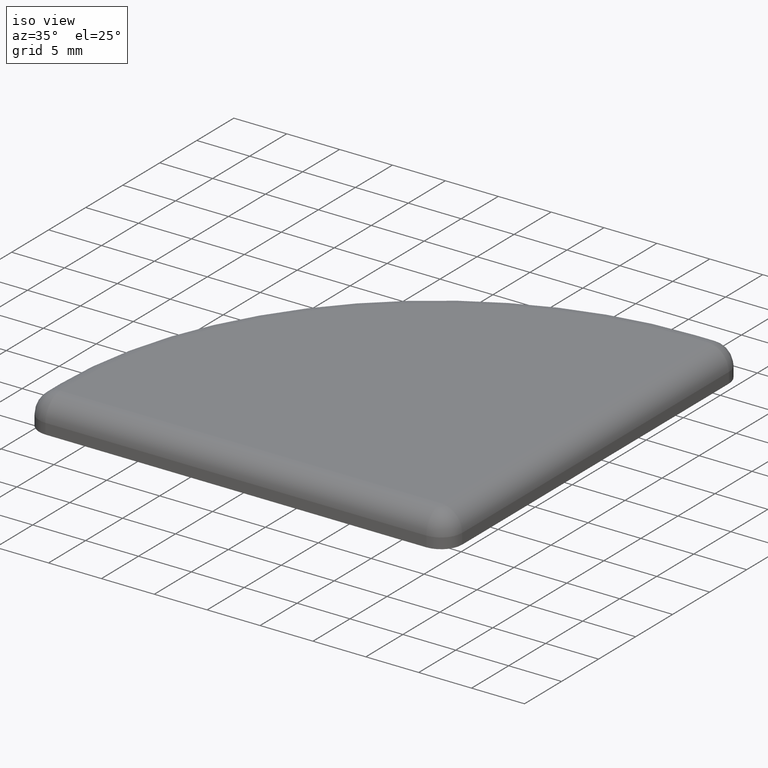
[diagram: clean part render]
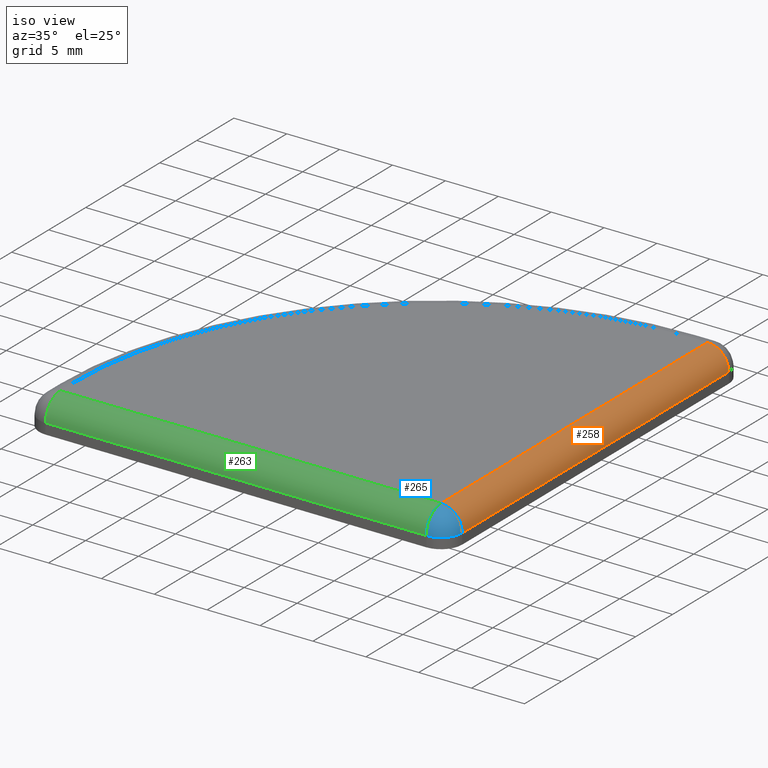
[diagram: same view with three faces highlighted in distinct colors, each labeled with its STEP entity id]
A machine part, iso view with three faces highlighted in distinct colors.
Their STEP definitions:

[orange] entity #258 — the highlighted cylindrical surface (edge-blend (fillet) strip) has radius 2 mm, axis along (-0, 1, 0).
#25=FACE_OUTER_BOUND('',#43,.T.);
#43=EDGE_LOOP('',(#176,#177,#178,#179));
#61=LINE('',#432,#81);
#62=LINE('',#435,#82);
#81=VECTOR('',#340,10.);
#82=VECTOR('',#343,10.);
#101=CIRCLE('',#300,2.);
#102=CIRCLE('',#301,2.);
#118=VERTEX_POINT('',#428);
#119=VERTEX_POINT('',#429);
#120=VERTEX_POINT('',#431);
#121=VERTEX_POINT('',#433);
#139=EDGE_CURVE('',#118,#119,#101,.T.);
#140=EDGE_CURVE('',#119,#120,#61,.T.);
#141=EDGE_CURVE('',#120,#121,#102,.T.);
#142=EDGE_CURVE('',#121,#118,#62,.T.);
#176=ORIENTED_EDGE('',*,*,#139,.T.);
#177=ORIENTED_EDGE('',*,*,#140,.T.);
#178=ORIENTED_EDGE('',*,*,#141,.T.);
#179=ORIENTED_EDGE('',*,*,#142,.T.);
#250=CYLINDRICAL_SURFACE('',#299,2.);
#258=ADVANCED_FACE('',(#25),#250,.T.);
#299=AXIS2_PLACEMENT_3D('',#427,#336,#337);
#300=AXIS2_PLACEMENT_3D('',#430,#338,#339);
#301=AXIS2_PLACEMENT_3D('',#434,#341,#342);
#336=DIRECTION('center_axis',(-6.41462192005654E-15,1.,0.));
#337=DIRECTION('ref_axis',(0.707106781186549,4.71027737605131E-15,0.707106781186546));
#338=DIRECTION('center_axis',(-6.66133814775093E-15,1.,0.));
#339=DIRECTION('ref_axis',(0.,0.,1.));
#340=DIRECTION('',(-6.41462192005654E-15,1.,0.));
#341=DIRECTION('center_axis',(4.44089209850062E-15,-1.,0.));
#342=DIRECTION('ref_axis',(1.,4.44089209850062E-15,0.));
#343=DIRECTION('',(6.41462192005654E-15,-1.,0.));
#427=CARTESIAN_POINT('Origin',(43.3692019380737,11.7620032159202,1.));
#428=CARTESIAN_POINT('',(43.3692019380737,4.63083275760073,3.));
#429=CARTESIAN_POINT('',(45.3692019380737,4.63083275760073,1.));
#430=CARTESIAN_POINT('Origin',(43.3692019380737,4.63083275760072,1.));
#431=CARTESIAN_POINT('',(45.3692019380735,40.6308327576003,1.));
#432=CARTESIAN_POINT('',(45.3692019380737,11.7620032159202,1.));
#433=CARTESIAN_POINT('',(43.3692019380735,40.6308327576003,3.));
#434=CARTESIAN_POINT('Origin',(43.3692019380735,40.6308327576003,1.));
#435=CARTESIAN_POINT('',(43.3692019380737,11.7620032159202,3.));

[blue] entity #265 — the highlighted spherical surface has radius 2 mm.
#23=SPHERICAL_SURFACE('',#318,2.);
#32=FACE_OUTER_BOUND('',#50,.T.);
#50=EDGE_LOOP('',(#202,#203,#204));
#101=CIRCLE('',#300,2.);
#111=CIRCLE('',#315,2.);
#113=CIRCLE('',#319,2.);
#118=VERTEX_POINT('',#428);
#119=VERTEX_POINT('',#429);
#130=VERTEX_POINT('',#461);
#139=EDGE_CURVE('',#118,#119,#101,.T.);
#156=EDGE_CURVE('',#130,#118,#111,.T.);
#159=EDGE_CURVE('',#130,#119,#113,.T.);
#202=ORIENTED_EDGE('',*,*,#139,.F.);
#203=ORIENTED_EDGE('',*,*,#156,.F.);
#204=ORIENTED_EDGE('',*,*,#159,.T.);
#265=ADVANCED_FACE('',(#32),#23,.T.);
#300=AXIS2_PLACEMENT_3D('',#430,#338,#339);
#315=AXIS2_PLACEMENT_3D('',#463,#375,#376);
#318=AXIS2_PLACEMENT_3D('',#467,#382,#383);
#319=AXIS2_PLACEMENT_3D('',#468,#384,#385);
#338=DIRECTION('center_axis',(-6.66133814775093E-15,1.,0.));
#339=DIRECTION('ref_axis',(0.,0.,1.));
#375=DIRECTION('center_axis',(-1.,0.,0.));
#376=DIRECTION('ref_axis',(0.,-1.,0.));
#382=DIRECTION('center_axis',(0.408248290463863,-0.408248290463863,-0.816496580927726));
#383=DIRECTION('ref_axis',(0.577350269189626,-0.577350269189626,0.577350269189626));
#384=DIRECTION('center_axis',(0.,0.,1.));
#385=DIRECTION('ref_axis',(0.,-1.,0.));
#428=CARTESIAN_POINT('',(43.3692019380737,4.63083275760073,3.));
#429=CARTESIAN_POINT('',(45.3692019380737,4.63083275760073,1.));
#430=CARTESIAN_POINT('Origin',(43.3692019380737,4.63083275760072,1.));
#461=CARTESIAN_POINT('',(43.3692019380737,2.63083275760073,1.));
#463=CARTESIAN_POINT('Origin',(43.3692019380737,4.63083275760073,1.));
#467=CARTESIAN_POINT('Origin',(43.3692019380737,4.63083275760073,1.));
#468=CARTESIAN_POINT('Origin',(43.3692019380737,4.63083275760073,1.));

[green] entity #263 — the highlighted cylindrical surface (edge-blend (fillet) strip) has radius 2 mm, axis along (1, 0, 0).
#30=FACE_OUTER_BOUND('',#48,.T.);
#48=EDGE_LOOP('',(#195,#196,#197,#198));
#67=LINE('',#462,#87);
#68=LINE('',#464,#88);
#87=VECTOR('',#374,10.);
#88=VECTOR('',#377,10.);
#110=CIRCLE('',#314,2.);
#111=CIRCLE('',#315,2.);
#118=VERTEX_POINT('',#428);
#128=VERTEX_POINT('',#452);
#129=VERTEX_POINT('',#459);
#130=VERTEX_POINT('',#461);
#154=EDGE_CURVE('',#128,#129,#110,.T.);
#155=EDGE_CURVE('',#129,#130,#67,.T.);
#156=EDGE_CURVE('',#130,#118,#111,.T.);
#157=EDGE_CURVE('',#118,#128,#68,.T.);
#195=ORIENTED_EDGE('',*,*,#154,.T.);
#196=ORIENTED_EDGE('',*,*,#155,.T.);
#197=ORIENTED_EDGE('',*,*,#156,.T.);
#198=ORIENTED_EDGE('',*,*,#157,.T.);
#253=CYLINDRICAL_SURFACE('',#313,2.);
#263=ADVANCED_FACE('',(#30),#253,.T.);
#313=AXIS2_PLACEMENT_3D('',#458,#370,#371);
#314=AXIS2_PLACEMENT_3D('',#460,#372,#373);
#315=AXIS2_PLACEMENT_3D('',#463,#375,#376);
#370=DIRECTION('center_axis',(1.,0.,0.));
#371=DIRECTION('ref_axis',(0.,-0.707106781186547,0.707106781186548));
#372=DIRECTION('center_axis',(1.,0.,0.));
#373=DIRECTION('ref_axis',(0.,0.,1.));
#374=DIRECTION('',(1.,0.,0.));
#375=DIRECTION('center_axis',(-1.,0.,0.));
#376=DIRECTION('ref_axis',(0.,-1.,0.));
#377=DIRECTION('',(-1.,0.,0.));
#428=CARTESIAN_POINT('',(43.3692019380737,4.63083275760073,3.));
#452=CARTESIAN_POINT('',(7.36920193807327,4.63083275760047,3.));
#458=CARTESIAN_POINT('Origin',(18.2380314797539,4.63083275760073,1.));
#459=CARTESIAN_POINT('',(7.36920193807328,2.63083275760073,1.));
#460=CARTESIAN_POINT('Origin',(7.36920193807328,4.63083275760073,1.));
#461=CARTESIAN_POINT('',(43.3692019380737,2.63083275760073,1.));
#462=CARTESIAN_POINT('',(18.2380314797539,2.63083275760073,1.));
#463=CARTESIAN_POINT('Origin',(43.3692019380737,4.63083275760073,1.));
#464=CARTESIAN_POINT('',(18.2380314797539,4.63083275760073,3.));